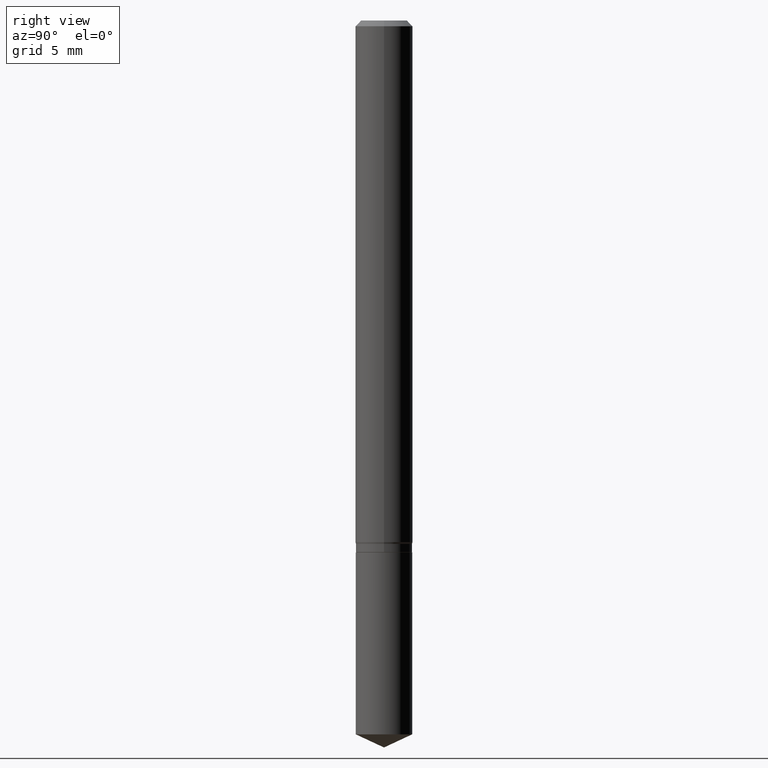
[diagram: clean part render]
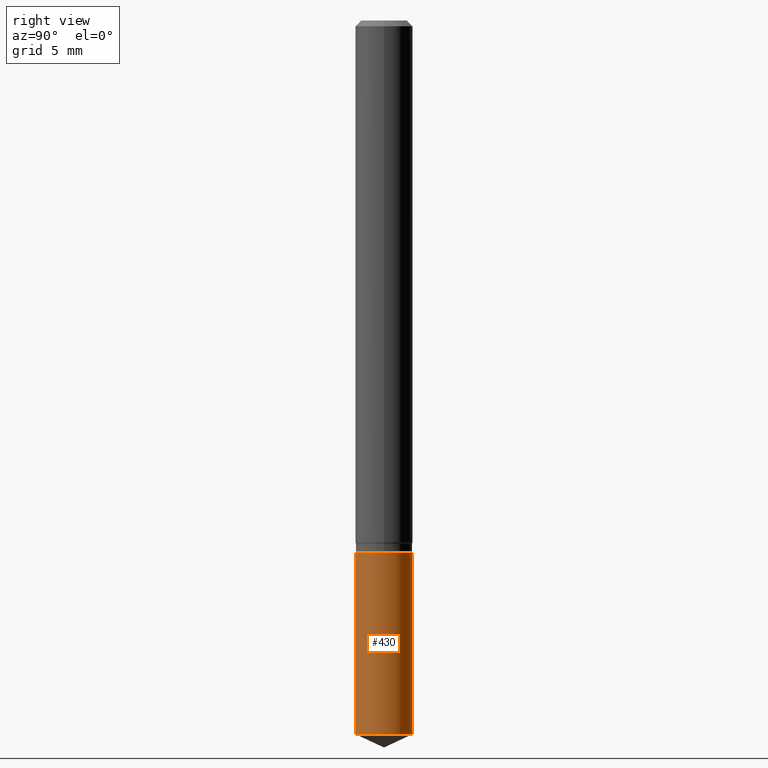
[diagram: same view with one face highlighted and labeled with its STEP entity id]
A machine part, right view. The second image highlights one B-rep face of the part: STEP entity #430.
In plain terms, the highlighted cylindrical surface (edge-blend (fillet) strip) has radius 1.4745 mm, axis along (-0, 0, 1).
Its self-contained STEP definition (entity closure, byte-faithful):
#8 = CIRCLE ( 'NONE', #128, 0.05804999999999999744 ) ;
#10 = ORIENTED_EDGE ( 'NONE', *, *, #489, .F. ) ;
#13 = EDGE_CURVE ( 'NONE', #183, #353, #173, .T. ) ;
#18 = CARTESIAN_POINT ( 'NONE',  ( 2.676565608369631794E-29, -3.821426325363822773E-15, -1.094499999999999806 ) ) ;
#32 = DIRECTION ( 'NONE',  ( -6.982962677686265922E-15, -1.000000000000000000, 2.353012914439503496E-15 ) ) ;
#70 = ORIENTED_EDGE ( 'NONE', *, *, #473, .T. ) ;
#104 = VERTEX_POINT ( 'NONE', #257 ) ;
#106 = LINE ( 'NONE', #298, #306 ) ;
#122 = VECTOR ( 'NONE', #445, 39.37007874015748143 ) ;
#127 = CARTESIAN_POINT ( 'NONE',  ( 4.124700581087740328E-16, 0.05804999999999487653, -1.469030840444103037 ) ) ;
#128 = AXIS2_PLACEMENT_3D ( 'NONE', #18, #133, #394 ) ;
#133 = DIRECTION ( 'NONE',  ( -2.445358326776455510E-29, 3.491639551644474585E-15, 1.000000000000000000 ) ) ;
#142 = AXIS2_PLACEMENT_3D ( 'NONE', #174, #441, #334 ) ;
#173 = LINE ( 'NONE', #485, #122 ) ;
#174 = CARTESIAN_POINT ( 'NONE',  ( 3.592427717684202887E-29, -5.129153021169098548E-15, -1.469030840444102815 ) ) ;
#183 = VERTEX_POINT ( 'NONE', #127 ) ;
#208 = CYLINDRICAL_SURFACE ( 'NONE', #422, 0.05804999999999999744 ) ;
#226 = EDGE_LOOP ( 'NONE', ( #70, #490, #256, #10 ) ) ;
#241 = CARTESIAN_POINT ( 'NONE',  ( 4.124700581087739835E-16, 0.05804999999999616023, -1.094500000000000028 ) ) ;
#256 = ORIENTED_EDGE ( 'NONE', *, *, #275, .F. ) ;
#257 = CARTESIAN_POINT ( 'NONE',  ( -4.053609834396517801E-16, -0.05805000000000513222, -1.469030840444102592 ) ) ;
#260 = FACE_OUTER_BOUND ( 'NONE', #226, .T. ) ;
#266 = CIRCLE ( 'NONE', #142, 0.05804999999999999744 ) ;
#275 = EDGE_CURVE ( 'NONE', #278, #353, #8, .T. ) ;
#278 = VERTEX_POINT ( 'NONE', #322 ) ;
#298 = CARTESIAN_POINT ( 'NONE',  ( -4.053609834396609506E-16, -0.05805000000000382077, -1.094499999999999806 ) ) ;
#306 = VECTOR ( 'NONE', #484, 39.37007874015748143 ) ;
#322 = CARTESIAN_POINT ( 'NONE',  ( -4.053609834396609506E-16, -0.05805000000000382077, -1.094499999999999806 ) ) ;
#334 = DIRECTION ( 'NONE',  ( -6.982962677686265922E-15, -1.000000000000000000, 4.706025828879006993E-15 ) ) ;
#342 = DIRECTION ( 'NONE',  ( -2.445358326776455510E-29, 3.491639551644474585E-15, 1.000000000000000000 ) ) ;
#353 = VERTEX_POINT ( 'NONE', #241 ) ;
#372 = CARTESIAN_POINT ( 'NONE',  ( 2.676565608369631794E-29, -3.821426325363822773E-15, -1.094499999999999806 ) ) ;
#394 = DIRECTION ( 'NONE',  ( -6.982962677686265922E-15, -1.000000000000000000, 2.353012914439503496E-15 ) ) ;
#422 = AXIS2_PLACEMENT_3D ( 'NONE', #372, #342, #32 ) ;
#430 = ADVANCED_FACE ( 'NONE', ( #260 ), #208, .T. ) ;
#441 = DIRECTION ( 'NONE',  ( -2.445358326776455510E-29, 3.491639551644474585E-15, 1.000000000000000000 ) ) ;
#445 = DIRECTION ( 'NONE',  ( -2.445358326776455790E-29, 3.491639551644474585E-15, 1.000000000000000000 ) ) ;
#473 = EDGE_CURVE ( 'NONE', #104, #183, #266, .T. ) ;
#484 = DIRECTION ( 'NONE',  ( -2.445358326776455790E-29, 3.491639551644474585E-15, 1.000000000000000000 ) ) ;
#485 = CARTESIAN_POINT ( 'NONE',  ( 4.124700581087648130E-16, 0.05804999999999617410, -1.094500000000000028 ) ) ;
#489 = EDGE_CURVE ( 'NONE', #104, #278, #106, .T. ) ;
#490 = ORIENTED_EDGE ( 'NONE', *, *, #13, .T. ) ;